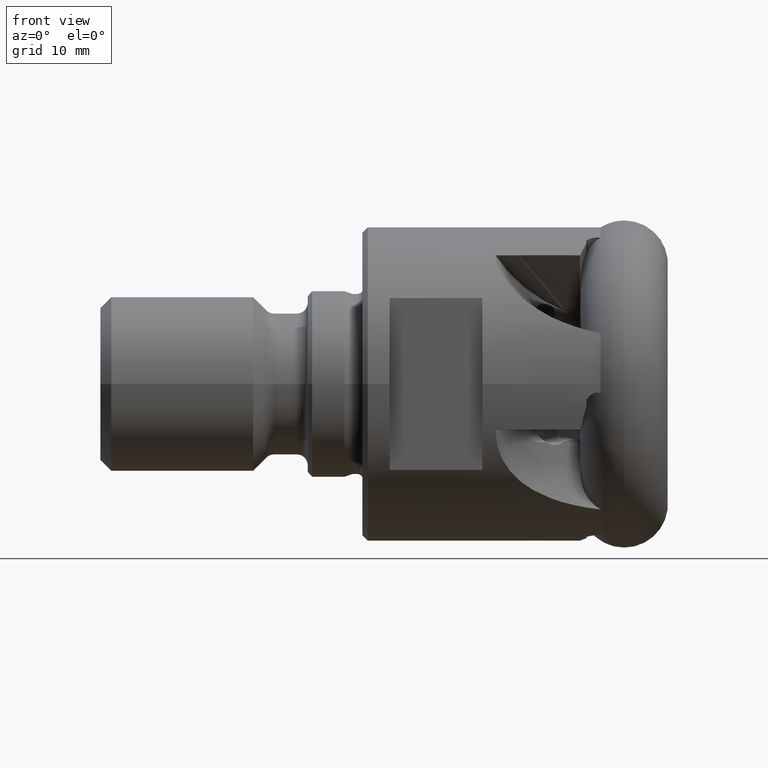
[diagram: clean part render]
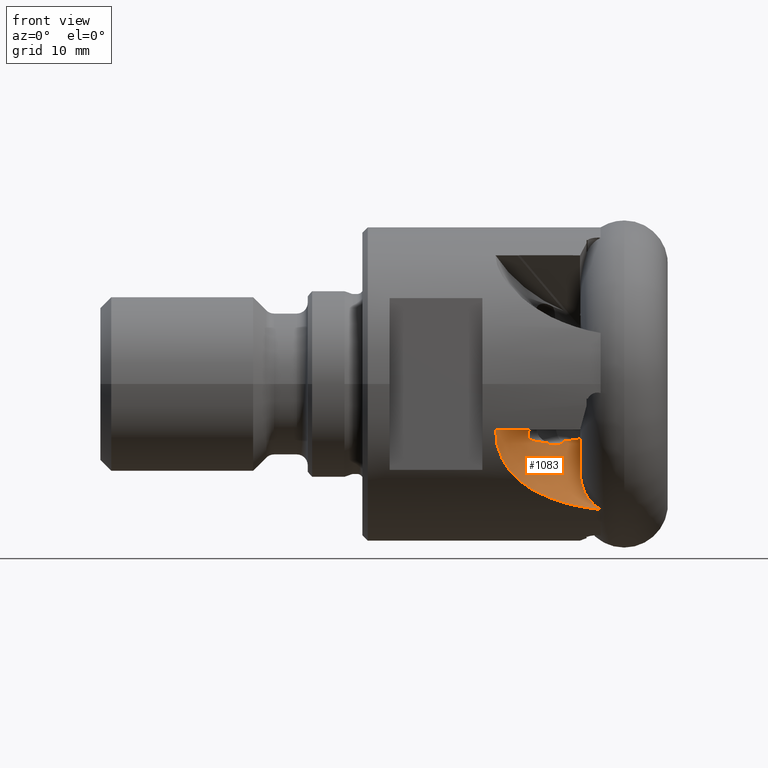
[diagram: same view with one face highlighted and labeled with its STEP entity id]
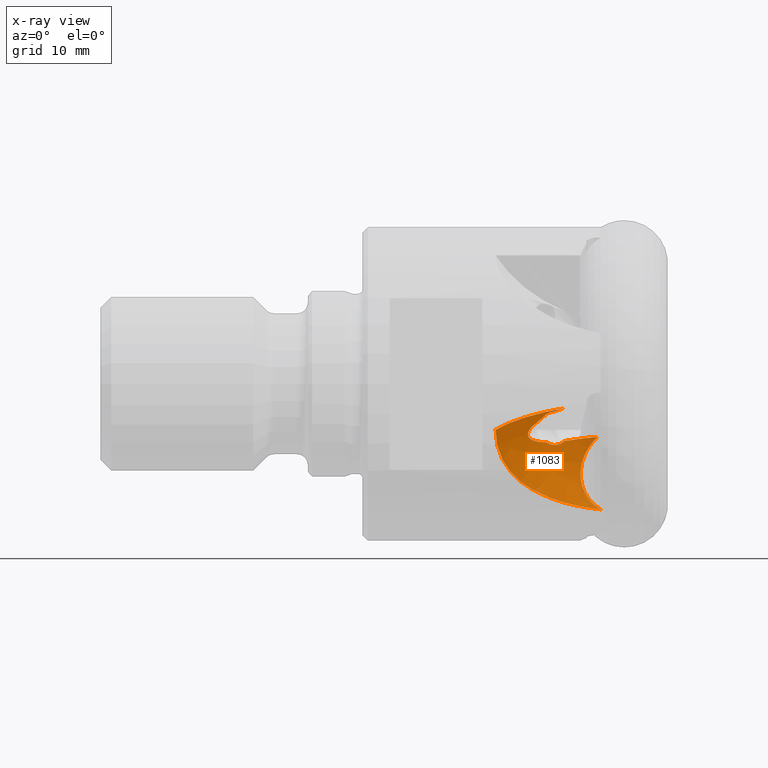
[diagram: x-ray of the same camera — body ghosted, the highlighted face saturated]
A machine part, front view. The second image highlights one B-rep face of the part: STEP entity #1083.
The next image is the same camera in x-ray: the body ghosted, the highlighted face saturated — about 0% of this face is hidden behind the body in this view.
In plain terms, the highlighted face is a freeform B-spline surface patch.
Its self-contained STEP definition (entity closure, byte-faithful):
#103 = CARTESIAN_POINT ( 'NONE',  ( -14.31350319673541300, -12.84980663869893800, -6.393963063103309500 ) ) ;
#160 = ORIENTED_EDGE ( 'NONE', *, *, #2961, .T. ) ;
#189 = CARTESIAN_POINT ( 'NONE',  ( -10.26729051821433300, -8.728216136607034800, -2.975900641894087000 ) ) ;
#252 = CARTESIAN_POINT ( 'NONE',  ( -4.849443281778583500, -6.037892823014405300, -8.680843278762379700 ) ) ;
#266 = ORIENTED_EDGE ( 'NONE', *, *, #6770, .T. ) ;
#279 = B_SPLINE_CURVE_WITH_KNOTS ( 'NONE', 3,
 ( #3888, #5748, #1904, #1931 ),
 .UNSPECIFIED., .F., .F.,
 ( 4, 4 ),
 ( 1.666147490140628000E-017, 0.001095732406096971700 ),
 .UNSPECIFIED. ) ;
#283 = CARTESIAN_POINT ( 'NONE',  ( -8.480493996297957100, -6.936928943775165600, -8.977300931482146100 ) ) ;
#355 = CARTESIAN_POINT ( 'NONE',  ( -10.63922129649772900, -8.937628727217868300, -3.250522610243094400 ) ) ;
#365 = CARTESIAN_POINT ( 'NONE',  ( -11.42541057369167500, -9.145494789482960100, -9.705576727499698500 ) ) ;
#367 = CARTESIAN_POINT ( 'NONE',  ( -6.777666542526676900, -6.848075267828622100, -7.208011182776194100 ) ) ;
#458 = EDGE_CURVE ( 'NONE', #4926, #1885, #4881, .T. ) ;
#473 = CARTESIAN_POINT ( 'NONE',  ( -6.857276701422534900, -7.482991910976239500, -8.951007670887149100 ) ) ;
#486 = DIRECTION ( 'NONE',  ( 0.0000000000000000000, 0.9496991262018778000, 0.3131638064837470300 ) ) ;
#510 = AXIS2_PLACEMENT_3D ( 'NONE', #4704, #7318, #3448 ) ;
#620 = EDGE_CURVE ( 'NONE', #2706, #7621, #6190, .T. ) ;
#732 = CARTESIAN_POINT ( 'NONE',  ( -5.355807354959816600, -6.130001019779541600, -4.850767082704177100 ) ) ;
#769 = CARTESIAN_POINT ( 'NONE',  ( -13.54124938334367900, -12.05485907519203300, -7.802556315017716000 ) ) ;
#939 = CARTESIAN_POINT ( 'NONE',  ( -11.55464857913726800, -9.469759014617379100, -5.018268447508818400 ) ) ;
#940 = CARTESIAN_POINT ( 'NONE',  ( -8.404935299055488000, -7.299163489721721900, -5.236299046863501300 ) ) ;
#973 = CARTESIAN_POINT ( 'NONE',  ( -14.74160504866387300, -13.79549418034542500, -4.233182235219586300 ) ) ;
#990 = CARTESIAN_POINT ( 'NONE',  ( -10.65261776031951300, -8.717108977766251600, -5.327708920557543400 ) ) ;
#992 = CARTESIAN_POINT ( 'NONE',  ( -9.333451064646418200, -7.830667883155003400, -5.609020945007735300 ) ) ;
#1003 = CARTESIAN_POINT ( 'NONE',  ( -6.899287340736600900, -7.361677543872486900, -8.636784516774412200 ) ) ;
#1063 = CARTESIAN_POINT ( 'NONE',  ( -6.204022243004699200, -6.418843485595607100, -5.860913633675553800 ) ) ;
#1083 = ADVANCED_FACE ( 'NONE', ( #4874 ), #1768, .F. ) ;
#1115 = CARTESIAN_POINT ( 'NONE',  ( -6.910691292415066300, -7.300958428730312200, -8.476448753508526200 ) ) ;
#1349 = CARTESIAN_POINT ( 'NONE',  ( -10.57769976716078400, -10.21556091184269600, -10.07941092626772000 ) ) ;
#1361 = CARTESIAN_POINT ( 'NONE',  ( -8.420963146052384800, -7.753890110087514400, -2.240959987446893700 ) ) ;
#1473 = VERTEX_POINT ( 'NONE', #4482 ) ;
#1556 = CARTESIAN_POINT ( 'NONE',  ( -14.74160504866387100, -12.70757794928694300, -7.532392018169711700 ) ) ;
#1576 = CARTESIAN_POINT ( 'NONE',  ( -11.60907541489120500, -9.587313352455703700, -4.234223802319754700 ) ) ;
#1640 = CARTESIAN_POINT ( 'NONE',  ( -10.33014725424423300, -8.478509197230549100, -5.363919001054696900 ) ) ;
#1651 = CARTESIAN_POINT ( 'NONE',  ( -6.881626997928614200, -7.009990463441632800, -7.680335601746937100 ) ) ;
#1664 = CARTESIAN_POINT ( 'NONE',  ( -11.71142477164721100, -9.654918801466402900, -4.459099113563588000 ) ) ;
#1726 = CARTESIAN_POINT ( 'NONE',  ( -6.259754691299209900, -8.088074234032392300, -10.40753289207142500 ) ) ;
#1768 =( BOUNDED_SURFACE ( )  B_SPLINE_SURFACE ( 3, 3, ( 
 ( #6056, #4103, #6731, #6764 ),
 ( #4801, #365, #283, #252 ),
 ( #1556, #7981, #6708, #4714 ),
 ( #973, #3431, #7952, #2871 ) ),
 .UNSPECIFIED., .F., .F., .F. ) 
 B_SPLINE_SURFACE_WITH_KNOTS ( ( 4, 4 ),
 ( 4, 4 ),
 ( 0.3915967886660375900, 1.000000000000000000 ),
 ( 0.0000000000000000000, 1.000000000000000000 ),
 .UNSPECIFIED. ) 
 GEOMETRIC_REPRESENTATION_ITEM ( )  RATIONAL_B_SPLINE_SURFACE ( (
 ( 0.8429497397102445600, 0.7956136395192421300, 0.7956136395192421300, 0.8429497397102445600),
 ( 0.8139662664898461600, 0.7682577420932388300, 0.7682577420932388300, 0.8139662664898461600),
 ( 0.8663163532530979700, 0.8176680937390863300, 0.8176680937390863300, 0.8663163532530979700),
 ( 1.000000000000000000, 0.9438446944567848700, 0.9438446944567848700, 1.000000000000000000) ) ) 
 REPRESENTATION_ITEM ( '' )  SURFACE ( )  );
#1885 = VERTEX_POINT ( 'NONE', #5540 ) ;
#1895 = ORIENTED_EDGE ( 'NONE', *, *, #620, .F. ) ;
#1904 = CARTESIAN_POINT ( 'NONE',  ( -9.063393108016788000, -8.065146384749315400, -2.421404648534895000 ) ) ;
#1931 = CARTESIAN_POINT ( 'NONE',  ( -9.367073451725239900, -8.223008845480258300, -2.549019660441717200 ) ) ;
#1948 = CARTESIAN_POINT ( 'NONE',  ( -11.99865759766023000, -10.96226852529696700, -9.268115178356501000 ) ) ;
#1977 = CARTESIAN_POINT ( 'NONE',  ( -7.941171551886169400, -9.212261378889635900, -11.00513376141027600 ) ) ;
#2177 = CARTESIAN_POINT ( 'NONE',  ( -11.74393411633867100, -9.665532004986648200, -4.662239352817342900 ) ) ;
#2198 = CARTESIAN_POINT ( 'NONE',  ( -9.367073451725239900, -8.223008845480258300, -2.549019660441717200 ) ) ;
#2224 = CARTESIAN_POINT ( 'NONE',  ( -10.16671352154855300, -8.362629890573927600, -5.374300848439059300 ) ) ;
#2228 = CARTESIAN_POINT ( 'NONE',  ( -9.749689091749949900, -8.086730877714480000, -5.517972357308655900 ) ) ;
#2252 = CARTESIAN_POINT ( 'NONE',  ( -10.04801879553935800, -8.620569672497435200, -2.784234243406881900 ) ) ;
#2292 = CARTESIAN_POINT ( 'NONE',  ( -5.355807354959816600, -6.130001019779541600, -4.850767082704177100 ) ) ;
#2375 = CARTESIAN_POINT ( 'NONE',  ( -6.583819112228729500, -7.852142657616984600, -9.862572900207679200 ) ) ;
#2622 = CARTESIAN_POINT ( 'NONE',  ( -14.40811349964155100, -12.97623050818812900, -6.133845161283160200 ) ) ;
#2647 = CARTESIAN_POINT ( 'NONE',  ( -5.655425139769596000, -8.674864205831900300, -11.43159078958184200 ) ) ;
#2706 = VERTEX_POINT ( 'NONE', #5039 ) ;
#2835 = CARTESIAN_POINT ( 'NONE',  ( -11.74242700304353400, -9.668737915060896500, -4.609841152898345000 ) ) ;
#2860 = CARTESIAN_POINT ( 'NONE',  ( -9.541473561484535200, -8.334117632068496200, -2.556538762888130600 ) ) ;
#2871 = CARTESIAN_POINT ( 'NONE',  ( -5.452550337404995100, -6.643421796360113000, -1.874782453413301500 ) ) ;
#2880 = B_SPLINE_CURVE_WITH_KNOTS ( 'NONE', 3,
 ( #7068, #3317, #3202, #2622, #103, #5142, #7715, #769, #7824, #6477, #1948, #5246, #3876, #1349, #4504, #5165, #5816, #1977, #5848, #6508, #2647, #5299 ),
 .UNSPECIFIED., .F., .F.,
 ( 4, 2, 2, 2, 2, 2, 2, 2, 2, 2, 4 ),
 ( 0.0000000000000000000, 0.001786637932896994200, 0.002679956899345493700, 0.003573275865793993200, 0.005359913798690996200, 0.007146551731587999500, 0.008039870698036502900, 0.008933189664485006300, 0.01071982759738201300, 0.01250646553027901600, 0.01429310346317601800 ),
 .UNSPECIFIED. ) ;
#2961 = EDGE_CURVE ( 'NONE', #1885, #1473, #4788, .T. ) ;
#2980 = CARTESIAN_POINT ( 'NONE',  ( -6.369966266518364500, -6.505368542417066600, -6.147924161334286100 ) ) ;
#3009 = CARTESIAN_POINT ( 'NONE',  ( -5.600306236559030800, -6.192899133171978000, -5.075222360935229400 ) ) ;
#3202 = CARTESIAN_POINT ( 'NONE',  ( -14.63226985678680200, -13.33209380048642100, -5.339872053893123500 ) ) ;
#3317 = CARTESIAN_POINT ( 'NONE',  ( -14.70646447844221100, -13.54156301617436700, -4.786996579842617700 ) ) ;
#3342 = CARTESIAN_POINT ( 'NONE',  ( -10.33112972677888000, -8.755818534841354900, -3.054159181134771500 ) ) ;
#3431 = CARTESIAN_POINT ( 'NONE',  ( -12.80577058329979100, -10.23084059086241600, -3.057735763721880900 ) ) ;
#3448 = DIRECTION ( 'NONE',  ( 0.0000000000000000000, 0.9496991262018778000, 0.3131638064837470900 ) ) ;
#3463 = CARTESIAN_POINT ( 'NONE',  ( -5.074100262649289500, -8.586961876832326400, -11.49724252705094300 ) ) ;
#3482 = CARTESIAN_POINT ( 'NONE',  ( -8.624377092371702200, -7.416477362915862200, -5.456800565321607600 ) ) ;
#3508 = CARTESIAN_POINT ( 'NONE',  ( -11.65766975610991500, -9.621044269253481200, -4.318706497016163900 ) ) ;
#3539 = CARTESIAN_POINT ( 'NONE',  ( -10.00116005603042200, -8.250038790602548700, -5.378373899001296400 ) ) ;
#3563 = CARTESIAN_POINT ( 'NONE',  ( -10.33112972677888000, -8.755818534841354900, -3.054159181134771500 ) ) ;
#3567 = CARTESIAN_POINT ( 'NONE',  ( -9.475691185500444600, -7.916702170803957600, -5.593686636469628000 ) ) ;
#3577 = CARTESIAN_POINT ( 'NONE',  ( -5.958792793094027700, -8.256742444046198100, -10.78440908091489100 ) ) ;
#3578 = CARTESIAN_POINT ( 'NONE',  ( -10.33112972677888000, -8.755818534841354900, -3.054159181134771500 ) ) ;
#3702 = VERTEX_POINT ( 'NONE', #4307 ) ;
#3876 = CARTESIAN_POINT ( 'NONE',  ( -11.06656975545759800, -10.45471503076627000, -9.831131317890294600 ) ) ;
#3888 = CARTESIAN_POINT ( 'NONE',  ( -8.420963146052384800, -7.753890110087514400, -2.240959987446893700 ) ) ;
#3996 = ORIENTED_EDGE ( 'NONE', *, *, #4055, .T. ) ;
#4048 = ORIENTED_EDGE ( 'NONE', *, *, #458, .T. ) ;
#4055 = EDGE_CURVE ( 'NONE', #6264, #4926, #6902, .T. ) ;
#4103 = CARTESIAN_POINT ( 'NONE',  ( -8.807074941663493900, -10.44097679242219500, -12.14354046163808200 ) ) ;
#4123 = CARTESIAN_POINT ( 'NONE',  ( -11.45068721509597200, -9.477065340041853900, -3.997540644981718100 ) ) ;
#4182 = CARTESIAN_POINT ( 'NONE',  ( -11.67245470346735700, -9.582608471359964900, -4.894434917250634100 ) ) ;
#4192 = CARTESIAN_POINT ( 'NONE',  ( -6.347523605528029300, -8.030017846267107000, -10.27520077652523200 ) ) ;
#4248 = CARTESIAN_POINT ( 'NONE',  ( -6.915883220873785000, -7.123072396470959700, -7.997380552059568400 ) ) ;
#4307 = CARTESIAN_POINT ( 'NONE',  ( -9.367073451725239900, -8.223008845480258300, -2.549019660441717200 ) ) ;
#4400 = EDGE_CURVE ( 'NONE', #5678, #3702, #8141, .T. ) ;
#4412 = EDGE_CURVE ( 'NONE', #5678, #1473, #6645, .T. ) ;
#4482 = CARTESIAN_POINT ( 'NONE',  ( -10.00116005603042200, -8.250038790602548700, -5.378373899001296400 ) ) ;
#4504 = CARTESIAN_POINT ( 'NONE',  ( -10.32792461828438500, -10.10074578048604200, -10.19415901264798700 ) ) ;
#4704 = CARTESIAN_POINT ( 'NONE',  ( -1.513101572890598300, -19.33943385778404400, -9.206584788449388800 ) ) ;
#4714 = CARTESIAN_POINT ( 'NONE',  ( -5.452550337404991500, -5.555505565301633200, -5.173992236363427600 ) ) ;
#4738 = CARTESIAN_POINT ( 'NONE',  ( -10.00116005603042200, -8.250038790602548700, -5.378373899001296400 ) ) ;
#4788 = B_SPLINE_CURVE_WITH_KNOTS ( 'NONE', 3,
 ( #940, #3482, #5418, #992, #3567, #2228, #6813, #3539 ),
 .UNSPECIFIED., .F., .F.,
 ( 4, 2, 2, 4 ),
 ( 0.001514844625194682700, 0.002502483686537727500, 0.002996303217209252400, 0.003490122747880777300 ),
 .UNSPECIFIED. ) ;
#4801 = CARTESIAN_POINT ( 'NONE',  ( -13.18807494335127100, -12.29152229050370000, -10.74298101727976000 ) ) ;
#4822 = CARTESIAN_POINT ( 'NONE',  ( -11.72587239723440800, -9.663198152175274600, -4.507870785064693700 ) ) ;
#4874 = FACE_OUTER_BOUND ( 'NONE', #6547, .T. ) ;
#4881 = CIRCLE ( 'NONE', #510, 14.43012998953867200 ) ;
#4926 = VERTEX_POINT ( 'NONE', #732 ) ;
#4962 = AXIS2_PLACEMENT_3D ( 'NONE', #8193, #5025, #486 ) ;
#5025 = DIRECTION ( 'NONE',  ( 7.198918224965442400E-017, 0.3131638064837470300, -0.9496991262018778000 ) ) ;
#5039 = CARTESIAN_POINT ( 'NONE',  ( -14.69983681011817100, -13.71915312689511300, -4.208008731075077300 ) ) ;
#5047 = ORIENTED_EDGE ( 'NONE', *, *, #4400, .T. ) ;
#5142 = CARTESIAN_POINT ( 'NONE',  ( -14.09254990793362200, -12.59164047805011700, -6.888460232578147200 ) ) ;
#5165 = CARTESIAN_POINT ( 'NONE',  ( -9.563789143980598000, -9.771023762349141600, -10.51396061549803000 ) ) ;
#5246 = CARTESIAN_POINT ( 'NONE',  ( -11.30667669216971100, -10.57964424737640900, -9.696923488609940000 ) ) ;
#5299 = CARTESIAN_POINT ( 'NONE',  ( -5.074100262649289500, -8.586961876832326400, -11.49724252705094300 ) ) ;
#5415 = CARTESIAN_POINT ( 'NONE',  ( -11.48601484796345300, -9.406939171723529100, -5.064273540243966000 ) ) ;
#5418 = CARTESIAN_POINT ( 'NONE',  ( -8.907084553036762400, -7.577825323441127900, -5.580092517550713900 ) ) ;
#5445 = CARTESIAN_POINT ( 'NONE',  ( -11.12360523975200300, -9.091542576983515600, -5.226615647327656200 ) ) ;
#5475 = CARTESIAN_POINT ( 'NONE',  ( -11.27426757136756800, -9.218621632174572900, -5.179183885672348900 ) ) ;
#5485 = CARTESIAN_POINT ( 'NONE',  ( -5.615670039255880900, -8.414435042809675000, -11.12904301385975500 ) ) ;
#5505 = CARTESIAN_POINT ( 'NONE',  ( -11.32562069011514600, -9.389539253674271900, -3.858721765101226400 ) ) ;
#5540 = CARTESIAN_POINT ( 'NONE',  ( -8.404935299055488000, -7.299163489721721900, -5.236299046863501300 ) ) ;
#5678 = VERTEX_POINT ( 'NONE', #3578 ) ;
#5748 = CARTESIAN_POINT ( 'NONE',  ( -8.748516303489230600, -7.909703511329760200, -2.316467166141710000 ) ) ;
#5816 = CARTESIAN_POINT ( 'NONE',  ( -9.034685846624247700, -9.570840540888575300, -10.69475292657093700 ) ) ;
#5848 = CARTESIAN_POINT ( 'NONE',  ( -7.373570425927790800, -9.053339827847890900, -11.13502739082924400 ) ) ;
#5875 = ORIENTED_EDGE ( 'NONE', *, *, #4412, .F. ) ;
#5998 = CARTESIAN_POINT ( 'NONE',  ( -5.358921438107534700, -8.507998497768666000, -11.32792408943694100 ) ) ;
#6056 = CARTESIAN_POINT ( 'NONE',  ( -10.24126164692485100, -12.79293347402784400, -12.91909946424786200 ) ) ;
#6075 = CARTESIAN_POINT ( 'NONE',  ( -10.81246286466646800, -8.840467571525817200, -5.301985598329648200 ) ) ;
#6142 = CARTESIAN_POINT ( 'NONE',  ( -6.630694444002942100, -6.693993616146643800, -6.742776119345506900 ) ) ;
#6190 = CIRCLE ( 'NONE', #4962, 14.88424295726788100 ) ;
#6223 = CARTESIAN_POINT ( 'NONE',  ( -6.571201051718263700, -6.645425088395090700, -6.591896189476832600 ) ) ;
#6264 = VERTEX_POINT ( 'NONE', #7700 ) ;
#6276 = EDGE_CURVE ( 'NONE', #7621, #3702, #279, .T. ) ;
#6477 = CARTESIAN_POINT ( 'NONE',  ( -12.42418491847552700, -11.22835509782843900, -8.947294394173443500 ) ) ;
#6508 = CARTESIAN_POINT ( 'NONE',  ( -6.231843352966975200, -8.785169408260010500, -11.34780135097486600 ) ) ;
#6547 = EDGE_LOOP ( 'NONE', ( #266, #3996, #4048, #160, #5875, #5047, #8039, #1895 ) ) ;
#6645 = B_SPLINE_CURVE_WITH_KNOTS ( 'NONE', 3,
 ( #3563, #355, #7376, #5505, #4123, #1576, #3508, #1664, #4822, #2835, #2177, #8079, #4182, #939, #5415, #5475, #5445, #6075, #990, #1640, #2224, #4738 ),
 .UNSPECIFIED., .F., .F.,
 ( 4, 2, 2, 2, 2, 2, 2, 2, 2, 2, 4 ),
 ( 0.002305096201240228900, 0.003517430645582458800, 0.004123597867753571800, 0.004426681478839125500, 0.004578223284381902800, 0.004729765089924680900, 0.005032848701010236300, 0.005335932312095791700, 0.005942099534266900900, 0.006548266756438010000, 0.007154433978609118200 ),
 .UNSPECIFIED. ) ;
#6708 = CARTESIAN_POINT ( 'NONE',  ( -9.525197424808196100, -6.617059519966921300, -5.524040233733271200 ) ) ;
#6722 = CARTESIAN_POINT ( 'NONE',  ( -9.719403396365949600, -8.440677424076728400, -2.603435706069622000 ) ) ;
#6731 = CARTESIAN_POINT ( 'NONE',  ( -6.498848488799560600, -8.834279485756694000, -11.61373114567626900 ) ) ;
#6764 = CARTESIAN_POINT ( 'NONE',  ( -3.705439773503560000, -8.243515288545120600, -11.41892632841484500 ) ) ;
#6770 = EDGE_CURVE ( 'NONE', #2706, #6264, #2880, .T. ) ;
#6791 = CARTESIAN_POINT ( 'NONE',  ( -6.065820490256675700, -8.201248064303147300, -10.66173168682197800 ) ) ;
#6813 = CARTESIAN_POINT ( 'NONE',  ( -9.879556386617453600, -8.169521459643180000, -5.458574923407126400 ) ) ;
#6879 = CARTESIAN_POINT ( 'NONE',  ( -5.817800999729591600, -6.262251372574475300, -5.323419481379501900 ) ) ;
#6902 = B_SPLINE_CURVE_WITH_KNOTS ( 'NONE', 3,
 ( #3463, #5998, #5485, #3577, #6791, #1726, #4192, #2375, #7501, #8148, #473, #1003, #1115, #4248, #1651, #367, #8089, #6142, #6223, #2980, #1063, #6879, #3009, #2292 ),
 .UNSPECIFIED., .F., .F.,
 ( 4, 2, 2, 2, 2, 2, 2, 2, 2, 2, 2, 4 ),
 ( 0.0001760411316069662000, 0.001189957854062761000, 0.001696916215290659400, 0.002203874576518557900, 0.003217791298974352000, 0.003724749660202249100, 0.004231708021430145700, 0.005245624743885935400, 0.005752583105113829400, 0.006259541466341725200, 0.007273458188797514100, 0.008287374911253303800 ),
 .UNSPECIFIED. ) ;
#7068 = CARTESIAN_POINT ( 'NONE',  ( -14.69983681011817100, -13.71915312689511300, -4.208008731075077300 ) ) ;
#7318 = DIRECTION ( 'NONE',  ( -7.198918224965442400E-017, -0.3131638064837470300, 0.9496991262018778000 ) ) ;
#7376 = CARTESIAN_POINT ( 'NONE',  ( -10.93100322451146800, -9.123110521049593300, -3.470780139463677000 ) ) ;
#7501 = CARTESIAN_POINT ( 'NONE',  ( -6.705651591271004200, -7.727486514358924200, -9.563594021480756900 ) ) ;
#7621 = VERTEX_POINT ( 'NONE', #1361 ) ;
#7700 = CARTESIAN_POINT ( 'NONE',  ( -5.074100262649289500, -8.586961876832326400, -11.49724252705094300 ) ) ;
#7715 = CARTESIAN_POINT ( 'NONE',  ( -13.96596693476521100, -12.45925566779113500, -7.124514109576538500 ) ) ;
#7824 = CARTESIAN_POINT ( 'NONE',  ( -13.19432903900449000, -11.77326143366311100, -8.217076754756417900 ) ) ;
#7952 = CARTESIAN_POINT ( 'NONE',  ( -9.525197424808197900, -7.704975751025402900, -2.224830450783144500 ) ) ;
#7981 = CARTESIAN_POINT ( 'NONE',  ( -12.80577058329978600, -9.142924359803934900, -6.356945546672006000 ) ) ;
#8024 = CARTESIAN_POINT ( 'NONE',  ( -9.967203558455853600, -8.577844506187501500, -2.731273754618845500 ) ) ;
#8039 = ORIENTED_EDGE ( 'NONE', *, *, #6276, .F. ) ;
#8056 = CARTESIAN_POINT ( 'NONE',  ( -10.19773360540652800, -8.695553887670151000, -2.906493110188558900 ) ) ;
#8079 = CARTESIAN_POINT ( 'NONE',  ( -11.72225063278958100, -9.633593627552645700, -4.811285696889472200 ) ) ;
#8089 = CARTESIAN_POINT ( 'NONE',  ( -6.733889922181353100, -6.795201805255970000, -7.050503687528833800 ) ) ;
#8141 = B_SPLINE_CURVE_WITH_KNOTS ( 'NONE', 3,
 ( #3342, #189, #8056, #2252, #8024, #6722, #2860, #2198 ),
 .UNSPECIFIED., .F., .F.,
 ( 4, 2, 2, 4 ),
 ( 0.006238942871243820900, 0.006548713986120661100, 0.006858485100997501300, 0.007478027330751177300 ),
 .UNSPECIFIED. ) ;
#8148 = CARTESIAN_POINT ( 'NONE',  ( -6.826701155044744100, -7.543942162528485300, -9.105862599633839600 ) ) ;
#8193 = CARTESIAN_POINT ( 'NONE',  ( -1.513101572890598500, -20.27487757451744700, -6.369762454579673200 ) ) ;